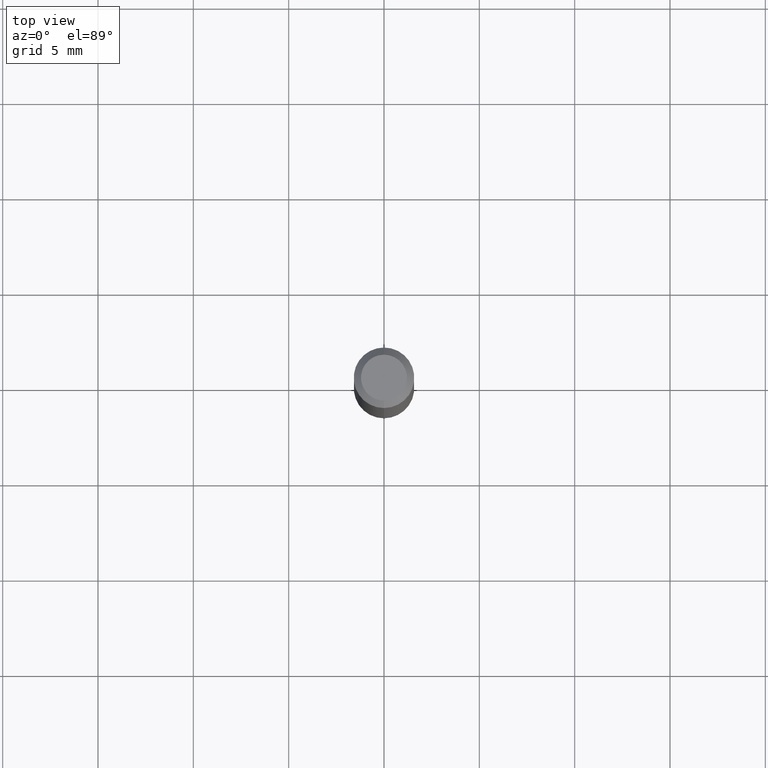
[diagram: clean part render]
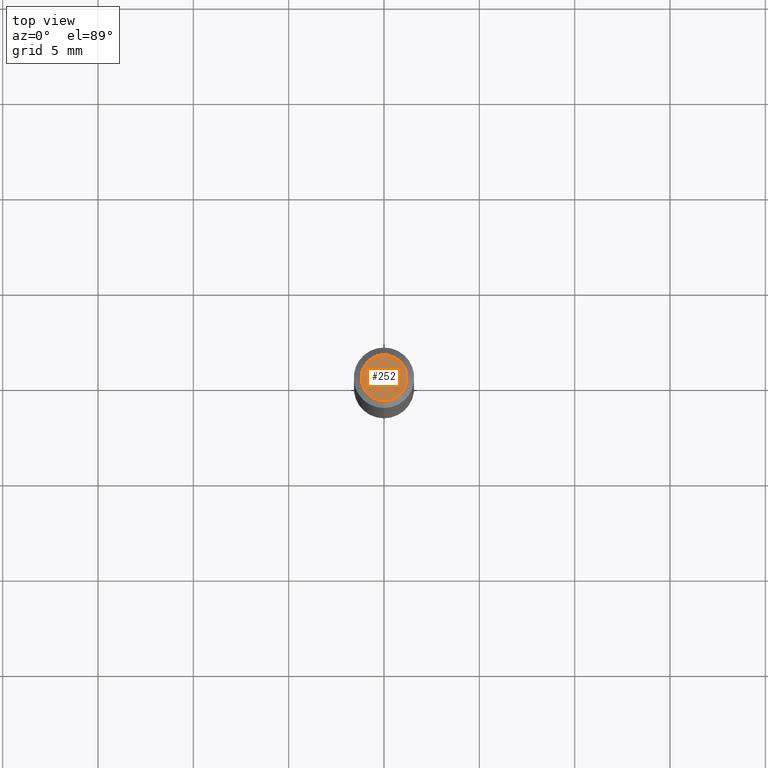
[diagram: same view with one face highlighted and labeled with its STEP entity id]
A machine part, top view. The second image highlights one B-rep face of the part: STEP entity #252.
In plain terms, the highlighted planar face has unit normal (0, -0, -1).
Its self-contained STEP definition (entity closure, byte-faithful):
#4 = CIRCLE ( 'NONE', #356, 0.04749999999999999362 ) ;
#19 = CIRCLE ( 'NONE', #307, 0.04749999999999999362 ) ;
#33 = CARTESIAN_POINT ( 'NONE',  ( 3.840629472727447874E-16, 0.04749999999999999362, -1.747056831868805136E-16 ) ) ;
#36 = EDGE_CURVE ( 'NONE', #323, #481, #19, .T. ) ;
#117 = ORIENTED_EDGE ( 'NONE', *, *, #204, .T. ) ;
#128 = CARTESIAN_POINT ( 'NONE',  ( 2.166895866700634628E-46, -3.093733869239918501E-32, -8.860833423437975062E-18 ) ) ;
#130 = ORIENTED_EDGE ( 'NONE', *, *, #36, .T. ) ;
#142 = DIRECTION ( 'NONE',  ( -6.982962677686266711E-15, -1.000000000000000000, 3.491470521335633630E-15 ) ) ;
#160 = DIRECTION ( 'NONE',  ( 6.982962677686265922E-15, 1.000000000000000000, -3.491470521335632447E-15 ) ) ;
#183 = CARTESIAN_POINT ( 'NONE',  ( 2.166895866700634628E-46, -3.093733869239918501E-32, -8.860833423437975062E-18 ) ) ;
#204 = EDGE_CURVE ( 'NONE', #481, #323, #4, .T. ) ;
#252 = ADVANCED_FACE ( 'NONE', ( #344 ), #354, .F. ) ;
#269 = DIRECTION ( 'NONE',  ( 2.445476360010259382E-29, -3.491470521335632447E-15, -1.000000000000000000 ) ) ;
#282 = EDGE_LOOP ( 'NONE', ( #130, #117 ) ) ;
#307 = AXIS2_PLACEMENT_3D ( 'NONE', #128, #447, #370 ) ;
#323 = VERTEX_POINT ( 'NONE', #33 ) ;
#335 = DIRECTION ( 'NONE',  ( -2.445476360010259663E-29, 3.491470521335632447E-15, 1.000000000000000000 ) ) ;
#344 = FACE_OUTER_BOUND ( 'NONE', #282, .T. ) ;
#354 = PLANE ( 'NONE',  #367 ) ;
#356 = AXIS2_PLACEMENT_3D ( 'NONE', #183, #335, #142 ) ;
#367 = AXIS2_PLACEMENT_3D ( 'NONE', #478, #269, #160 ) ;
#370 = DIRECTION ( 'NONE',  ( -6.982962677686266711E-15, -1.000000000000000000, 3.491470521335633630E-15 ) ) ;
#414 = CARTESIAN_POINT ( 'NONE',  ( -3.773273898774340269E-16, -0.04749999999999999362, 1.569840163400045235E-16 ) ) ;
#447 = DIRECTION ( 'NONE',  ( -2.445476360010259663E-29, 3.491470521335632447E-15, 1.000000000000000000 ) ) ;
#478 = CARTESIAN_POINT ( 'NONE',  ( 3.316907271900976096E-16, 0.04749999999999999362, -1.702752664751615038E-16 ) ) ;
#481 = VERTEX_POINT ( 'NONE', #414 ) ;